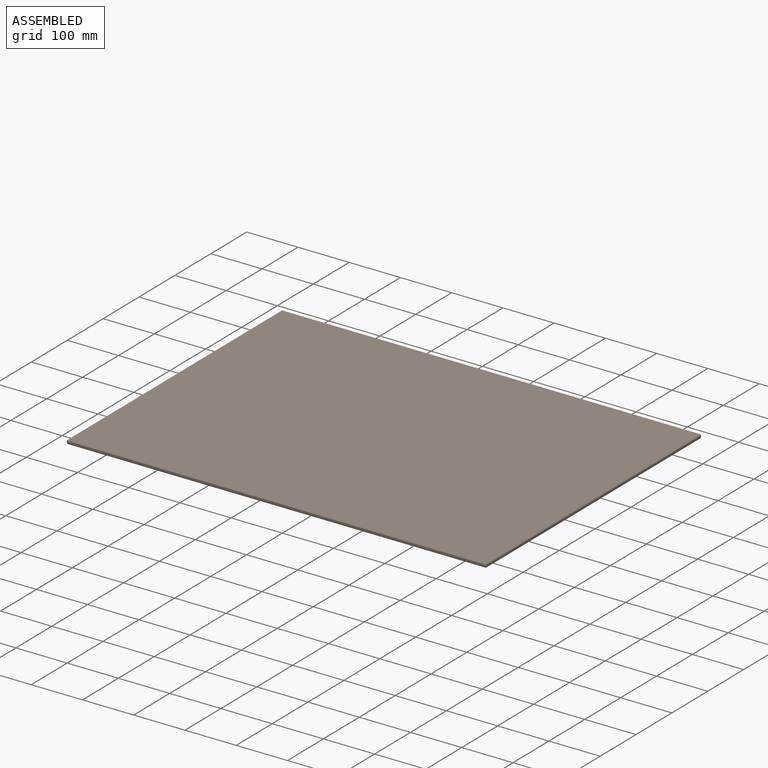
[diagram: assembled view]
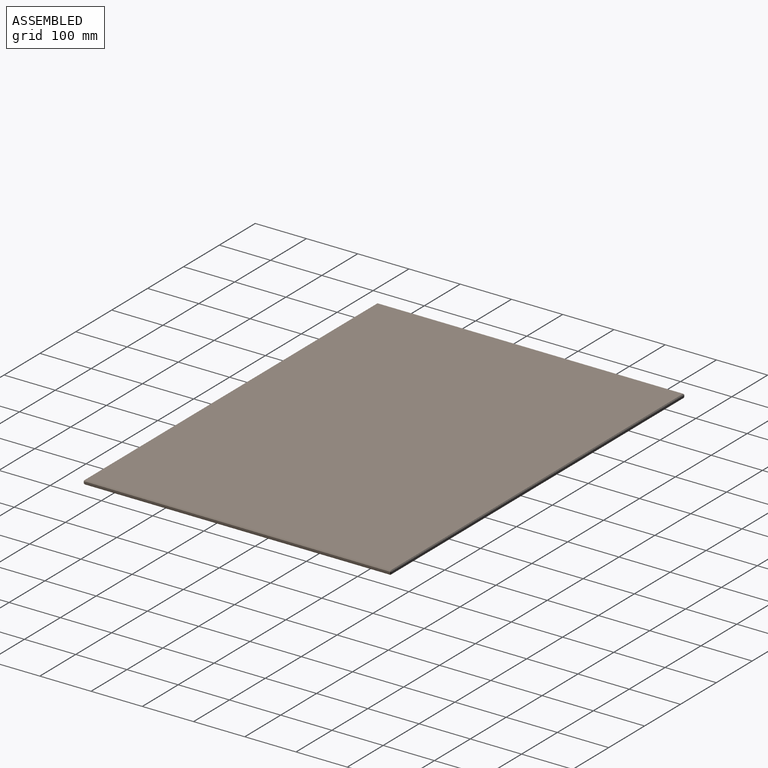
[diagram: assembled view, second angle]
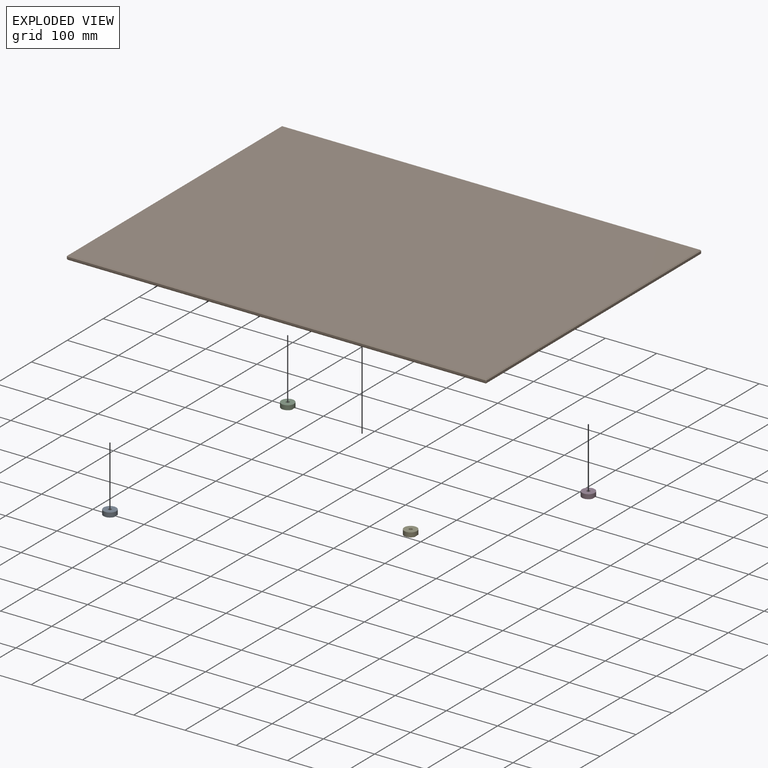
[diagram: exploded view]
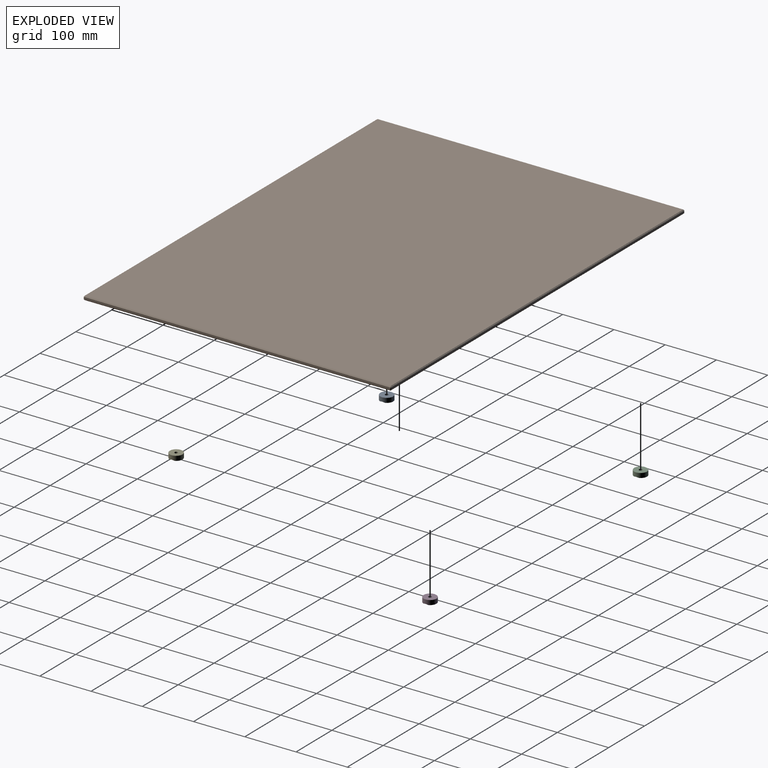
[diagram: exploded view, second angle]
ASSEMBLY  parts=5 mates=4
PART A: 6 faces, bbox 24.9x24.9x8.9 mm
  f0: cylinder r=3.17mm len=8.33mm, axis (0,0,-1), area 161.7mm2, adj f4,f5
  f1: cylinder r=12.45mm len=24.89mm, axis (0,0,-1), area 682.3mm2, adj f2,f3,f4,f5
  f2: plane 23.08x7.79mm, normal (0,0,-1), area 130.2mm2, adj f1,f5
  f3: plane 23.08x7.79mm, normal (0,0,-1), area 130.2mm2, adj f1,f5
  f4: plane 24.89x24.89mm, normal (0,0,1), area 455mm2, adj f0,f1
  f5: cylinder r=11.18mm len=24.89mm, axis (-1,0,0), area 201.2mm2, adj f0,f1,f2,f3
PART B: 34 faces, bbox 819.2x600.1x7.9 mm
  f0: plane 596.52x4.32mm, normal (-1,0,0), area 2575.8mm2, adj f1,f7,f15,f23
  f1: cylinder r=1.78mm len=4.32mm, axis (0,0,-1), area 12.1mm2, adj f0,f2,f17,f25
  f2: plane 815.59x4.32mm, normal (0,-1,0), area 3521.7mm2, adj f1,f3,f16,f24
  f3: cylinder r=1.78mm len=4.32mm, axis (0,0,-1), area 12.1mm2, adj f2,f4,f14,f22
  f4: plane 596.52x4.32mm, normal (1,0,0), area 2575.8mm2, adj f3,f5,f12,f20
  f5: cylinder r=1.78mm len=4.32mm, axis (0,0,-1), area 12.1mm2, adj f4,f6,f10,f18
  f6: plane 815.59x4.32mm, normal (0,1,0), area 3521.7mm2, adj f5,f7,f11,f19
  f7: cylinder r=1.78mm len=4.32mm, axis (0,0,-1), area 12.1mm2, adj f0,f6,f13,f21
  f8: plane 815.59x596.52mm, normal (0,0,1), area 486517.3mm2, adj f19,f20,f23,f24
  f9: plane 815.59x596.52mm, normal (0,0,-1), area 486497mm2, adj f11,f12,f15,f16,f26,f28,f30,f32
  f10: cone r=1.78mm half-angle=45deg, axis (0,0,1), area 3.5mm2, adj f5,f11,f12
  f11: plane 815.59x1.78mm, normal (0,0.71,-0.71), area 2050.8mm2, adj f6,f9,f10,f13
  f12: plane 596.52x1.78mm, normal (0.71,0,-0.71), area 1499.9mm2, adj f4,f9,f10,f14
  f13: cone r=1.78mm half-angle=45deg, axis (0,0,1), area 3.5mm2, adj f7,f11,f15
  f14: cone r=1.78mm half-angle=45deg, axis (0,0,1), area 3.5mm2, adj f3,f12,f16
  f15: plane 596.52x1.78mm, normal (-0.71,0,-0.71), area 1499.9mm2, adj f0,f9,f13,f17
  f16: plane 815.59x1.78mm, normal (0,-0.71,-0.71), area 2050.8mm2, adj f2,f9,f14,f17
  f17: cone r=1.78mm half-angle=45deg, axis (0,0,1), area 3.5mm2, adj f1,f15,f16
  f18: cone r=1.78mm half-angle=45deg, axis (0,0,-1), area 3.5mm2, adj f5,f19,f20
  f19: plane 815.59x1.78mm, normal (0,0.71,0.71), area 2050.8mm2, adj f6,f8,f18,f21
  f20: plane 596.52x1.78mm, normal (0.71,0,0.71), area 1499.9mm2, adj f4,f8,f18,f22
  f21: cone r=1.78mm half-angle=45deg, axis (0,0,-1), area 3.5mm2, adj f7,f19,f23
  f22: cone r=1.78mm half-angle=45deg, axis (0,0,-1), area 3.5mm2, adj f3,f20,f24
  f23: plane 596.52x1.78mm, normal (-0.71,0,0.71), area 1499.9mm2, adj f0,f8,f21,f25
  f24: plane 815.59x1.78mm, normal (0,-0.71,0.71), area 2050.8mm2, adj f2,f8,f22,f25
  f25: cone r=1.78mm half-angle=45deg, axis (0,0,-1), area 3.5mm2, adj f1,f23,f24
  f26: cylinder r=1.27mm len=2.54mm, axis (0,0,-1), area 20.3mm2, adj f9,f27
  f27: plane 2.54x2.54mm, normal (0,0,-1), area 5.1mm2, adj f26
  f28: cylinder r=1.27mm len=2.54mm, axis (0,0,-1), area 20.3mm2, adj f9,f29
  f29: plane 2.54x2.54mm, normal (0,0,-1), area 5.1mm2, adj f28
  f30: cylinder r=1.27mm len=2.54mm, axis (0,0,-1), area 20.3mm2, adj f9,f31
  f31: plane 2.54x2.54mm, normal (0,0,-1), area 5.1mm2, adj f30
  f32: cylinder r=1.27mm len=2.54mm, axis (0,0,-1), area 20.3mm2, adj f9,f33
  f33: plane 2.54x2.54mm, normal (0,0,-1), area 5.1mm2, adj f32
PART C: same geometry as A
PART D: same geometry as A
PART E: same geometry as A
PLACE A t=(52.18,-26.7,-39.41)mm
PLACE B t=(3.92,-79.03,-30.52)mm fixed
PLACE C t=(52.18,468.72,-39.41)mm
PLACE D t=(638.92,468.72,-39.41)mm
PLACE E t=(638.92,-26.7,-39.41)mm
MATE fastened B.f32 <-> A.f0  axis (0,0,-1) through (52.18,-26.7,-30.52)mm
MATE fastened E.f1 <-> B.f28  axis (0,0,1) through (638.92,-26.7,-30.52)mm
MATE fastened B.f30 <-> D.f0  axis (0,0,-1) through (638.92,468.72,-30.52)mm
MATE fastened B.f26 <-> C.f1  axis (0,0,-1) through (52.18,468.72,-30.52)mm
